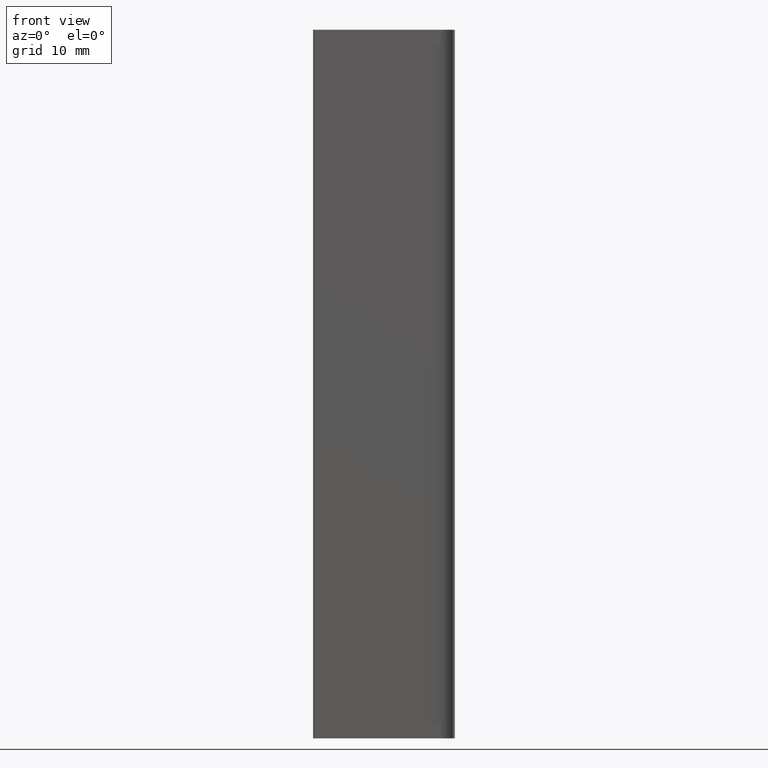
[diagram: clean part render]
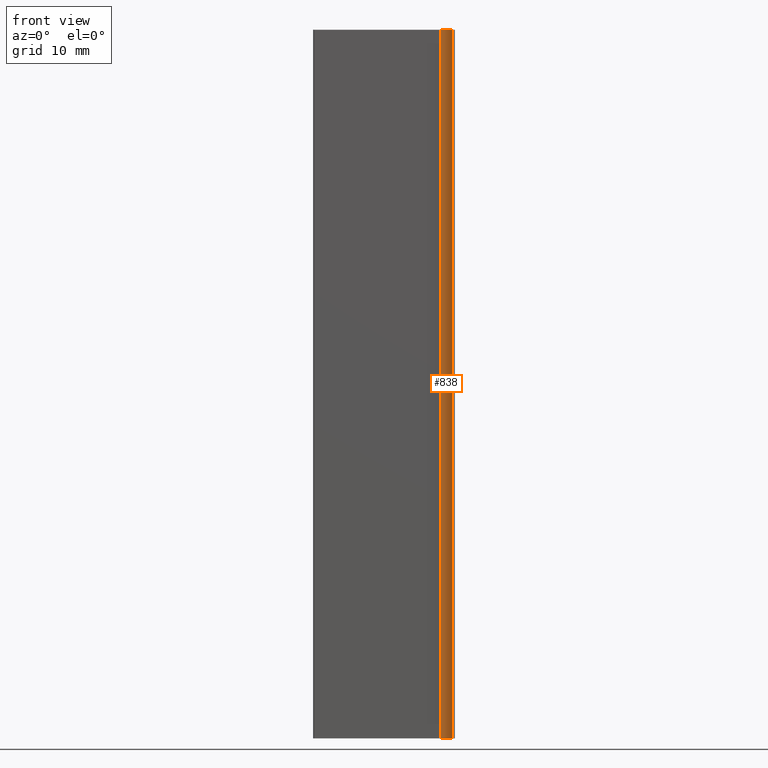
[diagram: same view with one face highlighted and labeled with its STEP entity id]
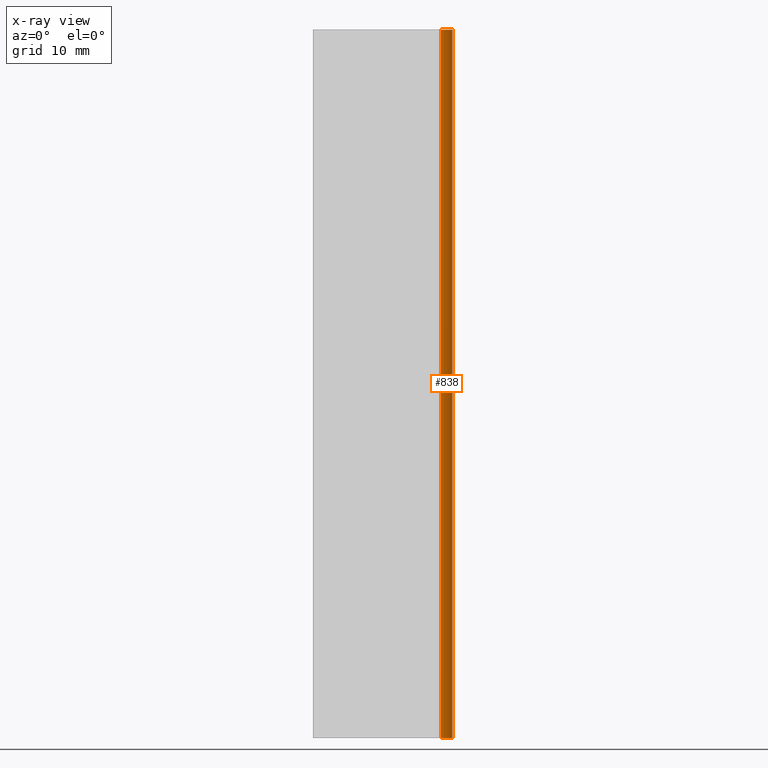
[diagram: x-ray of the same camera — body ghosted, the highlighted face saturated]
A machine part, front view. The second image highlights one B-rep face of the part: STEP entity #838.
The next image is the same camera in x-ray: the body ghosted, the highlighted face saturated — about 0% of this face is hidden behind the body in this view.
In plain terms, the highlighted cylindrical surface (edge-blend (fillet) strip) has radius 2 mm, axis along (0, 0, -1).
Its self-contained STEP definition (entity closure, byte-faithful):
#780=CARTESIAN_POINT('',(8.899999999999864,2.273737E-013,-100.0));
#781=VERTEX_POINT('',#780);
#788=CARTESIAN_POINT('',(8.899999999999864,2.273737E-013,0.0));
#789=VERTEX_POINT('',#788);
#790=CARTESIAN_POINT('',(8.899999999999864,2.273737E-013,-100.0));
#791=DIRECTION('',(0.0,0.0,1.0));
#792=VECTOR('',#791,100.0);
#793=LINE('',#790,#792);
#794=EDGE_CURVE('',#781,#789,#793,.T.);
#806=CARTESIAN_POINT('',(8.899999999999864,-1.999999999999773,-100.0));
#807=DIRECTION('',(0.0,0.0,-1.0));
#808=DIRECTION('',(5.053215E-016,1.0,0.0));
#809=AXIS2_PLACEMENT_3D('',#806,#807,#808);
#810=CYLINDRICAL_SURFACE('',#809,2.0);
#811=CARTESIAN_POINT('',(10.536363636363376,-0.850080850847689,-100.0));
#812=VERTEX_POINT('',#811);
#813=CARTESIAN_POINT('',(8.899999999999864,-1.999999999999773,-100.0));
#814=DIRECTION('',(0.0,0.0,-1.0));
#815=DIRECTION('',(1.0,0.0,0.0));
#816=AXIS2_PLACEMENT_3D('',#813,#814,#815);
#817=CIRCLE('',#816,2.0);
#818=EDGE_CURVE('',#781,#812,#817,.T.);
#819=ORIENTED_EDGE('',*,*,#818,.T.);
#820=CARTESIAN_POINT('',(10.536363636363376,-0.850080850847689,0.0));
#821=VERTEX_POINT('',#820);
#822=CARTESIAN_POINT('',(10.536363636363376,-0.850080850847689,-100.0));
#823=DIRECTION('',(0.0,0.0,1.0));
#824=VECTOR('',#823,100.0);
#825=LINE('',#822,#824);
#826=EDGE_CURVE('',#812,#821,#825,.T.);
#827=ORIENTED_EDGE('',*,*,#826,.T.);
#828=CARTESIAN_POINT('',(8.899999999999864,-1.999999999999773,0.0));
#829=DIRECTION('',(0.0,0.0,-1.0));
#830=DIRECTION('',(1.0,0.0,0.0));
#831=AXIS2_PLACEMENT_3D('',#828,#829,#830);
#832=CIRCLE('',#831,2.0);
#833=EDGE_CURVE('',#789,#821,#832,.T.);
#834=ORIENTED_EDGE('',*,*,#833,.F.);
#835=ORIENTED_EDGE('',*,*,#794,.F.);
#836=EDGE_LOOP('',(#819,#827,#834,#835));
#837=FACE_OUTER_BOUND('',#836,.T.);
#838=ADVANCED_FACE('',(#837),#810,.F.);